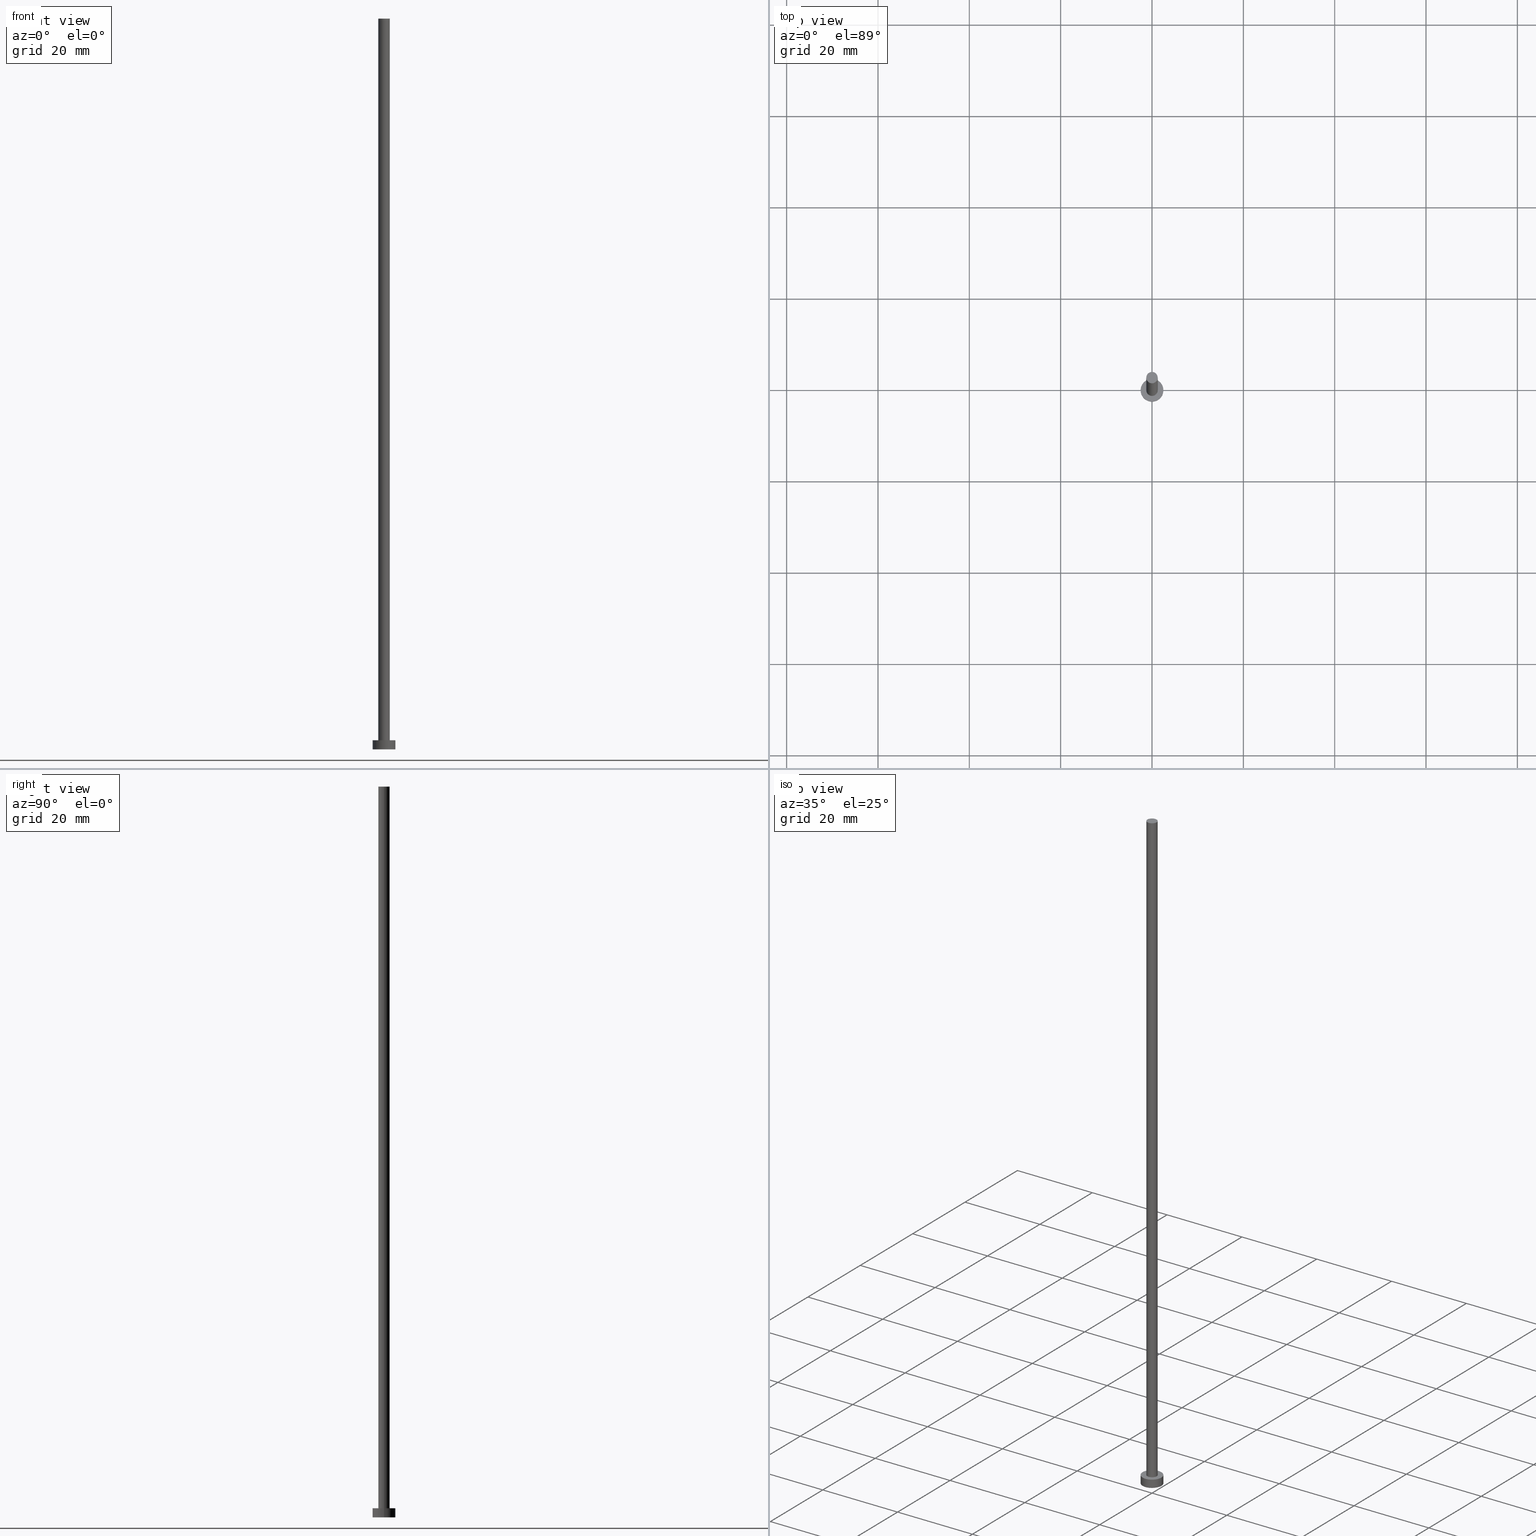
[diagram: canonical four-view strip — front | top / right | iso, engineering-drawing reading convention]
A machine part, canonical four-view strip (front | top / right | iso — engineering-drawing reading convention). The complete STEP part file that produces these views, byte-faithful:
ISO-10303-21;
HEADER;
FILE_DESCRIPTION (( 'STEP AP203' ),
    '1' );
FILE_NAME ('7a8d.STEP',
    '2023-02-13T14:28:10',
    ( '' ),
    ( '' ),
    'SwSTEP 2.0',
    'SolidWorks 2019',
    '' );
FILE_SCHEMA (( 'CONFIG_CONTROL_DESIGN' ));
ENDSEC;

DATA;
#1 = PRODUCT_RELATED_PRODUCT_CATEGORY ( 'detail', '', ( #250 ) ) ;
#2 = PERSON_AND_ORGANIZATION ( #3, #242 ) ;
#3 = PERSON ( 'NEUR�EN�', 'NEUR�EN�', 'NEUR�EN�', ('NEUR�EN�'), ('NEUR�EN�'), ('NEUR�EN�') ) ;
#4 = ORIENTED_EDGE ( 'NONE', *, *, #229, .T. ) ;
#5 = APPLICATION_CONTEXT ( 'configuration controlled 3d designs of mechanical parts and assemblies' ) ;
#6 = CYLINDRICAL_SURFACE ( 'NONE', #110, 1.250000000000000000 ) ;
#7 = DIRECTION ( 'NONE',  ( -1.000000000000000000, 0.000000000000000000, 0.000000000000000000 ) ) ;
#8 = LOCAL_TIME ( 15, 28, 10.00000000000000000, #194 ) ;
#9 = DIRECTION ( 'NONE',  ( 0.000000000000000000, 0.000000000000000000, 1.000000000000000000 ) ) ;
#10 = EDGE_LOOP ( 'NONE', ( #50, #92, #49, #131 ) ) ;
#11 = PERSON_AND_ORGANIZATION ( #3, #242 ) ;
#12 = AXIS2_PLACEMENT_3D ( 'NONE', #150, #46, #21 ) ;
#13 = CIRCLE ( 'NONE', #197, 2.500000000000000000 ) ;
#14 = CIRCLE ( 'NONE', #63, 1.250000000000000000 ) ;
#15 = ORIENTED_EDGE ( 'NONE', *, *, #235, .F. ) ;
#16 = DATE_TIME_ROLE ( 'classification_date' ) ;
#17 = CALENDAR_DATE ( 2023, 13, 2 ) ;
#18 = ADVANCED_FACE ( 'NONE', ( #137 ), #228, .T. ) ;
#19 = ORIENTED_EDGE ( 'NONE', *, *, #82, .F. ) ;
#20 = DATE_TIME_ROLE ( 'creation_date' ) ;
#21 = DIRECTION ( 'NONE',  ( 1.000000000000000000, 0.000000000000000000, 0.000000000000000000 ) ) ;
#22 = EDGE_CURVE ( 'NONE', #123, #227, #104, .T. ) ;
#23 =( GEOMETRIC_REPRESENTATION_CONTEXT ( 3 ) GLOBAL_UNCERTAINTY_ASSIGNED_CONTEXT ( ( #37 ) ) GLOBAL_UNIT_ASSIGNED_CONTEXT ( ( #240, #178, #207 ) ) REPRESENTATION_CONTEXT ( 'NONE', 'WORKASPACE' ) );
#24 = LOCAL_TIME ( 15, 28, 10.00000000000000000, #145 ) ;
#25 = CARTESIAN_POINT ( 'NONE',  ( 0.000000000000000000, 0.000000000000000000, 160.0000000000000000 ) ) ;
#26 = DIRECTION ( 'NONE',  ( 0.000000000000000000, 0.000000000000000000, 1.000000000000000000 ) ) ;
#27 = AXIS2_PLACEMENT_3D ( 'NONE', #106, #81, #64 ) ;
#28 = VECTOR ( 'NONE', #84, 1000.000000000000000 ) ;
#29 = AXIS2_PLACEMENT_3D ( 'NONE', #25, #187, #236 ) ;
#30 = CARTESIAN_POINT ( 'NONE',  ( 0.000000000000000000, 0.000000000000000000, 160.0000000000000000 ) ) ;
#31 = ADVANCED_FACE ( 'NONE', ( #166 ), #147, .F. ) ;
#32 = CARTESIAN_POINT ( 'NONE',  ( -2.500000000000000000, 0.000000000000000000, 2.000000000000000000 ) ) ;
#33 = DIRECTION ( 'NONE',  ( -0.000000000000000000, -0.000000000000000000, -1.000000000000000000 ) ) ;
#34 = SECURITY_CLASSIFICATION ( '', '', #43 ) ;
#35 = DIRECTION ( 'NONE',  ( -0.000000000000000000, -0.000000000000000000, -1.000000000000000000 ) ) ;
#36 = DIRECTION ( 'NONE',  ( -0.000000000000000000, -0.000000000000000000, -1.000000000000000000 ) ) ;
#37 = UNCERTAINTY_MEASURE_WITH_UNIT (LENGTH_MEASURE( 1.000000000000000082E-05 ), #240, 'distance_accuracy_value', 'NONE');
#38 = EDGE_CURVE ( 'NONE', #243, #95, #66, .T. ) ;
#39 = ORIENTED_EDGE ( 'NONE', *, *, #220, .T. ) ;
#40 = DATE_AND_TIME ( #149, #234 ) ;
#41 = FACE_OUTER_BOUND ( 'NONE', #221, .T. ) ;
#42 = MANIFOLD_SOLID_BREP ( 'P�idat vysunut�m3', #184 ) ;
#43 = SECURITY_CLASSIFICATION_LEVEL ( 'unclassified' ) ;
#44 = EDGE_LOOP ( 'NONE', ( #165, #19, #39, #211 ) ) ;
#45 = DATE_AND_TIME ( #85, #24 ) ;
#46 = DIRECTION ( 'NONE',  ( 0.000000000000000000, 0.000000000000000000, 1.000000000000000000 ) ) ;
#47 = CYLINDRICAL_SURFACE ( 'NONE', #56, 1.250000000000000000 ) ;
#48 = CIRCLE ( 'NONE', #86, 2.500000000000000000 ) ;
#49 = ORIENTED_EDGE ( 'NONE', *, *, #167, .T. ) ;
#50 = ORIENTED_EDGE ( 'NONE', *, *, #62, .F. ) ;
#51 = APPROVAL ( #233, 'NEUR�EN�' ) ;
#52 = ORIENTED_EDGE ( 'NONE', *, *, #22, .T. ) ;
#53 = DIRECTION ( 'NONE',  ( 0.000000000000000000, 0.000000000000000000, 1.000000000000000000 ) ) ;
#54 = APPROVAL_STATUS ( 'not_yet_approved' ) ;
#55 = ADVANCED_FACE ( 'NONE', ( #65, #41 ), #230, .T. ) ;
#56 = AXIS2_PLACEMENT_3D ( 'NONE', #129, #99, #206 ) ;
#57 = EDGE_LOOP ( 'NONE', ( #4, #163 ) ) ;
#58 = APPROVAL_ROLE ( '' ) ;
#59 = PRODUCT_DEFINITION_SHAPE ( 'NONE', 'NONE',  #189 ) ;
#60 = EDGE_LOOP ( 'NONE', ( #157, #76, #199, #144 ) ) ;
#61 = APPLICATION_CONTEXT ( 'configuration controlled 3d designs of mechanical parts and assemblies' ) ;
#62 = EDGE_CURVE ( 'NONE', #79, #95, #69, .T. ) ;
#63 = AXIS2_PLACEMENT_3D ( 'NONE', #68, #71, #213 ) ;
#64 = DIRECTION ( 'NONE',  ( 1.000000000000000000, 0.000000000000000000, -0.000000000000000000 ) ) ;
#65 = FACE_BOUND ( 'NONE', #126, .T. ) ;
#66 = CIRCLE ( 'NONE', #12, 1.250000000000000000 ) ;
#67 = APPROVAL_PERSON_ORGANIZATION ( #2, #88, #139 ) ;
#68 = CARTESIAN_POINT ( 'NONE',  ( 0.000000000000000000, 0.000000000000000000, 2.000000000000000000 ) ) ;
#69 = LINE ( 'NONE', #109, #232 ) ;
#70 = APPROVAL_DATE_TIME ( #238, #88 ) ;
#71 = DIRECTION ( 'NONE',  ( 0.000000000000000000, 0.000000000000000000, 1.000000000000000000 ) ) ;
#72 = DIRECTION ( 'NONE',  ( 1.000000000000000000, 0.000000000000000000, 0.000000000000000000 ) ) ;
#73 = ORIENTED_EDGE ( 'NONE', *, *, #141, .F. ) ;
#74 = PERSON_AND_ORGANIZATION_ROLE ( 'design_owner' ) ;
#75 = DIRECTION ( 'NONE',  ( -0.000000000000000000, -0.000000000000000000, -1.000000000000000000 ) ) ;
#76 = ORIENTED_EDGE ( 'NONE', *, *, #62, .T. ) ;
#77 = VECTOR ( 'NONE', #33, 1000.000000000000000 ) ;
#78 = CC_DESIGN_APPROVAL ( #51, ( #34 ) ) ;
#79 = VERTEX_POINT ( 'NONE', #172 ) ;
#80 = PERSON_AND_ORGANIZATION_ROLE ( 'creator' ) ;
#81 = DIRECTION ( 'NONE',  ( 0.000000000000000000, 0.000000000000000000, 1.000000000000000000 ) ) ;
#82 = EDGE_CURVE ( 'NONE', #237, #123, #48, .T. ) ;
#83 = DESIGN_CONTEXT ( 'detailed design', #61, 'design' ) ;
#84 = DIRECTION ( 'NONE',  ( -0.000000000000000000, -0.000000000000000000, -1.000000000000000000 ) ) ;
#85 = CALENDAR_DATE ( 2023, 13, 2 ) ;
#86 = AXIS2_PLACEMENT_3D ( 'NONE', #155, #112, #168 ) ;
#87 = CC_DESIGN_APPROVAL ( #152, ( #188 ) ) ;
#88 = APPROVAL ( #54, 'NEUR�EN�' ) ;
#89 = DIRECTION ( 'NONE',  ( 0.000000000000000000, 0.000000000000000000, 1.000000000000000000 ) ) ;
#90 = CARTESIAN_POINT ( 'NONE',  ( 2.500000000000000000, 3.061616997868383141E-16, 2.000000000000000000 ) ) ;
#91 = FACE_OUTER_BOUND ( 'NONE', #44, .T. ) ;
#92 = ORIENTED_EDGE ( 'NONE', *, *, #229, .F. ) ;
#93 = COORDINATED_UNIVERSAL_TIME_OFFSET ( 1, 0, .AHEAD. ) ;
#94 = DIRECTION ( 'NONE',  ( 1.000000000000000000, 0.000000000000000000, -0.000000000000000000 ) ) ;
#95 = VERTEX_POINT ( 'NONE', #171 ) ;
#96 = CARTESIAN_POINT ( 'NONE',  ( -1.250000000000000000, 0.000000000000000000, 2.000000000000000000 ) ) ;
#97 = AXIS2_PLACEMENT_3D ( 'NONE', #130, #89, #94 ) ;
#98 = CC_DESIGN_SECURITY_CLASSIFICATION ( #34, ( #188 ) ) ;
#99 = DIRECTION ( 'NONE',  ( -0.000000000000000000, -0.000000000000000000, -1.000000000000000000 ) ) ;
#100 = DATE_AND_TIME ( #142, #8 ) ;
#101 = PERSON_AND_ORGANIZATION_ROLE ( 'creator' ) ;
#102 = EDGE_CURVE ( 'NONE', #123, #237, #218, .T. ) ;
#103 = PERSON_AND_ORGANIZATION ( #3, #242 ) ;
#104 = LINE ( 'NONE', #181, #28 ) ;
#105 = PERSON_AND_ORGANIZATION ( #3, #242 ) ;
#106 = CARTESIAN_POINT ( 'NONE',  ( 0.000000000000000000, 0.000000000000000000, 0.000000000000000000 ) ) ;
#107 = DATE_AND_TIME ( #17, #249 ) ;
#108 = AXIS2_PLACEMENT_3D ( 'NONE', #136, #75, #180 ) ;
#109 = CARTESIAN_POINT ( 'NONE',  ( 1.250000000000000000, 1.530808498934191571E-16, 160.0000000000000000 ) ) ;
#110 = AXIS2_PLACEMENT_3D ( 'NONE', #190, #35, #7 ) ;
#111 = APPROVAL_PERSON_ORGANIZATION ( #105, #152, #58 ) ;
#112 = DIRECTION ( 'NONE',  ( 0.000000000000000000, 0.000000000000000000, 1.000000000000000000 ) ) ;
#113 = CC_DESIGN_PERSON_AND_ORGANIZATION_ASSIGNMENT ( #11, #101, ( #188 ) ) ;
#114 = CIRCLE ( 'NONE', #248, 1.250000000000000000 ) ;
#115 = CARTESIAN_POINT ( 'NONE',  ( 0.000000000000000000, 0.000000000000000000, 0.000000000000000000 ) ) ;
#116 = AXIS2_PLACEMENT_3D ( 'NONE', #179, #9, #119 ) ;
#117 = CARTESIAN_POINT ( 'NONE',  ( 2.500000000000000000, 3.061616997868383141E-16, 0.000000000000000000 ) ) ;
#118 = DIRECTION ( 'NONE',  ( 0.000000000000000000, 0.000000000000000000, 1.000000000000000000 ) ) ;
#119 = DIRECTION ( 'NONE',  ( 1.000000000000000000, 0.000000000000000000, 0.000000000000000000 ) ) ;
#120 = AXIS2_PLACEMENT_3D ( 'NONE', #127, #175, #239 ) ;
#121 = APPROVAL_PERSON_ORGANIZATION ( #103, #51, #182 ) ;
#122 = VERTEX_POINT ( 'NONE', #254 ) ;
#123 = VERTEX_POINT ( 'NONE', #90 ) ;
#124 = PERSON_AND_ORGANIZATION ( #3, #242 ) ;
#125 = ADVANCED_BREP_SHAPE_REPRESENTATION ( '7a8d', ( #42, #116 ), #23 ) ;
#126 = EDGE_LOOP ( 'NONE', ( #245, #73 ) ) ;
#127 = CARTESIAN_POINT ( 'NONE',  ( 0.000000000000000000, 0.000000000000000000, 2.000000000000000000 ) ) ;
#128 = CC_DESIGN_PERSON_AND_ORGANIZATION_ASSIGNMENT ( #124, #200, ( #34 ) ) ;
#129 = CARTESIAN_POINT ( 'NONE',  ( 0.000000000000000000, 0.000000000000000000, 160.0000000000000000 ) ) ;
#130 = CARTESIAN_POINT ( 'NONE',  ( 0.000000000000000000, 0.000000000000000000, 2.000000000000000000 ) ) ;
#131 = ORIENTED_EDGE ( 'NONE', *, *, #38, .T. ) ;
#132 = LINE ( 'NONE', #205, #77 ) ;
#133 = LINE ( 'NONE', #226, #170 ) ;
#134 = ORIENTED_EDGE ( 'NONE', *, *, #102, .T. ) ;
#135 = EDGE_CURVE ( 'NONE', #79, #210, #185, .T. ) ;
#136 = CARTESIAN_POINT ( 'NONE',  ( 0.000000000000000000, 0.000000000000000000, 2.000000000000000000 ) ) ;
#137 = FACE_OUTER_BOUND ( 'NONE', #57, .T. ) ;
#138 = DIRECTION ( 'NONE',  ( 1.000000000000000000, 0.000000000000000000, 0.000000000000000000 ) ) ;
#139 = APPROVAL_ROLE ( '' ) ;
#140 = AXIS2_PLACEMENT_3D ( 'NONE', #215, #255, #154 ) ;
#141 = EDGE_CURVE ( 'NONE', #95, #243, #14, .T. ) ;
#142 = CALENDAR_DATE ( 2023, 13, 2 ) ;
#143 = CARTESIAN_POINT ( 'NONE',  ( 0.000000000000000000, 0.000000000000000000, 160.0000000000000000 ) ) ;
#144 = ORIENTED_EDGE ( 'NONE', *, *, #167, .F. ) ;
#145 = COORDINATED_UNIVERSAL_TIME_OFFSET ( 1, 0, .AHEAD. ) ;
#146 = EDGE_LOOP ( 'NONE', ( #216, #15 ) ) ;
#147 = PLANE ( 'NONE',  #27 ) ;
#148 = ADVANCED_FACE ( 'NONE', ( #153 ), #186, .T. ) ;
#149 = CALENDAR_DATE ( 2023, 13, 2 ) ;
#150 = CARTESIAN_POINT ( 'NONE',  ( 0.000000000000000000, 0.000000000000000000, 2.000000000000000000 ) ) ;
#151 = AXIS2_PLACEMENT_3D ( 'NONE', #143, #118, #191 ) ;
#152 = APPROVAL ( #212, 'NEUR�EN�' ) ;
#153 = FACE_OUTER_BOUND ( 'NONE', #164, .T. ) ;
#154 = DIRECTION ( 'NONE',  ( -1.000000000000000000, 0.000000000000000000, 0.000000000000000000 ) ) ;
#155 = CARTESIAN_POINT ( 'NONE',  ( 0.000000000000000000, 0.000000000000000000, 2.000000000000000000 ) ) ;
#156 = ADVANCED_FACE ( 'NONE', ( #91 ), #217, .T. ) ;
#157 = ORIENTED_EDGE ( 'NONE', *, *, #135, .F. ) ;
#158 = DIRECTION ( 'NONE',  ( 0.000000000000000000, 0.000000000000000000, 1.000000000000000000 ) ) ;
#159 = AXIS2_PLACEMENT_3D ( 'NONE', #115, #158, #72 ) ;
#160 = LOCAL_TIME ( 15, 28, 10.00000000000000000, #93 ) ;
#161 = APPLICATION_PROTOCOL_DEFINITION ( 'international standard', 'config_control_design', 1994, #5 ) ;
#162 = APPLICATION_PROTOCOL_DEFINITION ( 'international standard', 'config_control_design', 1994, #61 ) ;
#163 = ORIENTED_EDGE ( 'NONE', *, *, #135, .T. ) ;
#164 = EDGE_LOOP ( 'NONE', ( #241, #52, #201, #173 ) ) ;
#165 = ORIENTED_EDGE ( 'NONE', *, *, #22, .F. ) ;
#166 = FACE_OUTER_BOUND ( 'NONE', #146, .T. ) ;
#167 = EDGE_CURVE ( 'NONE', #210, #243, #133, .T. ) ;
#168 = DIRECTION ( 'NONE',  ( 1.000000000000000000, 0.000000000000000000, 0.000000000000000000 ) ) ;
#169 = CIRCLE ( 'NONE', #159, 2.500000000000000000 ) ;
#170 = VECTOR ( 'NONE', #36, 1000.000000000000000 ) ;
#171 = CARTESIAN_POINT ( 'NONE',  ( 1.250000000000000000, 1.530808498934191571E-16, 2.000000000000000000 ) ) ;
#172 = CARTESIAN_POINT ( 'NONE',  ( 1.250000000000000000, 1.530808498934191571E-16, 160.0000000000000000 ) ) ;
#173 = ORIENTED_EDGE ( 'NONE', *, *, #220, .F. ) ;
#174 = CALENDAR_DATE ( 2023, 13, 2 ) ;
#175 = DIRECTION ( 'NONE',  ( 0.000000000000000000, 0.000000000000000000, 1.000000000000000000 ) ) ;
#176 = FACE_OUTER_BOUND ( 'NONE', #10, .T. ) ;
#177 = CC_DESIGN_PERSON_AND_ORGANIZATION_ASSIGNMENT ( #196, #202, ( #188 ) ) ;
#178 =( NAMED_UNIT ( * ) PLANE_ANGLE_UNIT ( ) SI_UNIT ( $, .RADIAN. ) );
#179 = CARTESIAN_POINT ( 'NONE',  ( 0.000000000000000000, 0.000000000000000000, 0.000000000000000000 ) ) ;
#180 = DIRECTION ( 'NONE',  ( -1.000000000000000000, 0.000000000000000000, 0.000000000000000000 ) ) ;
#181 = CARTESIAN_POINT ( 'NONE',  ( 2.500000000000000000, 3.061616997868383141E-16, 2.000000000000000000 ) ) ;
#182 = APPROVAL_ROLE ( '' ) ;
#183 = APPROVAL_DATE_TIME ( #107, #51 ) ;
#184 = CLOSED_SHELL ( 'NONE', ( #198, #148, #156, #55, #31, #253, #18 ) ) ;
#185 = CIRCLE ( 'NONE', #29, 1.250000000000000000 ) ;
#186 = CYLINDRICAL_SURFACE ( 'NONE', #140, 2.500000000000000000 ) ;
#187 = DIRECTION ( 'NONE',  ( 0.000000000000000000, 0.000000000000000000, 1.000000000000000000 ) ) ;
#188 = PRODUCT_DEFINITION_FORMATION_WITH_SPECIFIED_SOURCE ( 'LIBOVOLN�', '', #250, .NOT_KNOWN. ) ;
#189 = PRODUCT_DEFINITION ( 'NEZN�M�', '', #188, #83 ) ;
#190 = CARTESIAN_POINT ( 'NONE',  ( 0.000000000000000000, 0.000000000000000000, 160.0000000000000000 ) ) ;
#191 = DIRECTION ( 'NONE',  ( 1.000000000000000000, 0.000000000000000000, -0.000000000000000000 ) ) ;
#192 = MECHANICAL_CONTEXT ( 'NONE', #5, 'mechanical' ) ;
#193 = CC_DESIGN_PERSON_AND_ORGANIZATION_ASSIGNMENT ( #222, #80, ( #189 ) ) ;
#194 = COORDINATED_UNIVERSAL_TIME_OFFSET ( 1, 0, .AHEAD. ) ;
#195 = APPROVAL_DATE_TIME ( #100, #152 ) ;
#196 = PERSON_AND_ORGANIZATION ( #3, #242 ) ;
#197 = AXIS2_PLACEMENT_3D ( 'NONE', #204, #26, #138 ) ;
#198 = ADVANCED_FACE ( 'NONE', ( #214 ), #47, .T. ) ;
#199 = ORIENTED_EDGE ( 'NONE', *, *, #141, .T. ) ;
#200 = PERSON_AND_ORGANIZATION_ROLE ( 'classification_officer' ) ;
#201 = ORIENTED_EDGE ( 'NONE', *, *, #235, .T. ) ;
#202 = PERSON_AND_ORGANIZATION_ROLE ( 'design_supplier' ) ;
#203 = DIRECTION ( 'NONE',  ( -0.000000000000000000, -0.000000000000000000, -1.000000000000000000 ) ) ;
#204 = CARTESIAN_POINT ( 'NONE',  ( 0.000000000000000000, 0.000000000000000000, 0.000000000000000000 ) ) ;
#205 = CARTESIAN_POINT ( 'NONE',  ( -2.500000000000000000, 0.000000000000000000, 2.000000000000000000 ) ) ;
#206 = DIRECTION ( 'NONE',  ( -1.000000000000000000, 0.000000000000000000, 0.000000000000000000 ) ) ;
#207 =( NAMED_UNIT ( * ) SI_UNIT ( $, .STERADIAN. ) SOLID_ANGLE_UNIT ( ) );
#208 = ORIENTED_EDGE ( 'NONE', *, *, #82, .T. ) ;
#209 = CC_DESIGN_DATE_AND_TIME_ASSIGNMENT ( #40, #20, ( #189 ) ) ;
#210 = VERTEX_POINT ( 'NONE', #223 ) ;
#211 = ORIENTED_EDGE ( 'NONE', *, *, #247, .T. ) ;
#212 = APPROVAL_STATUS ( 'not_yet_approved' ) ;
#213 = DIRECTION ( 'NONE',  ( 1.000000000000000000, 0.000000000000000000, 0.000000000000000000 ) ) ;
#214 = FACE_OUTER_BOUND ( 'NONE', #60, .T. ) ;
#215 = CARTESIAN_POINT ( 'NONE',  ( 0.000000000000000000, 0.000000000000000000, 2.000000000000000000 ) ) ;
#216 = ORIENTED_EDGE ( 'NONE', *, *, #247, .F. ) ;
#217 = CYLINDRICAL_SURFACE ( 'NONE', #108, 2.500000000000000000 ) ;
#218 = CIRCLE ( 'NONE', #120, 2.500000000000000000 ) ;
#219 = CC_DESIGN_APPROVAL ( #88, ( #189 ) ) ;
#220 = EDGE_CURVE ( 'NONE', #237, #122, #132, .T. ) ;
#221 = EDGE_LOOP ( 'NONE', ( #208, #134 ) ) ;
#222 = PERSON_AND_ORGANIZATION ( #3, #242 ) ;
#223 = CARTESIAN_POINT ( 'NONE',  ( -1.250000000000000000, 0.000000000000000000, 160.0000000000000000 ) ) ;
#224 = DIRECTION ( 'NONE',  ( 1.000000000000000000, 0.000000000000000000, 0.000000000000000000 ) ) ;
#225 = CC_DESIGN_PERSON_AND_ORGANIZATION_ASSIGNMENT ( #244, #74, ( #250 ) ) ;
#226 = CARTESIAN_POINT ( 'NONE',  ( -1.250000000000000000, 0.000000000000000000, 160.0000000000000000 ) ) ;
#227 = VERTEX_POINT ( 'NONE', #117 ) ;
#228 = PLANE ( 'NONE',  #151 ) ;
#229 = EDGE_CURVE ( 'NONE', #210, #79, #114, .T. ) ;
#230 = PLANE ( 'NONE',  #97 ) ;
#231 = COORDINATED_UNIVERSAL_TIME_OFFSET ( 1, 0, .AHEAD. ) ;
#232 = VECTOR ( 'NONE', #203, 1000.000000000000000 ) ;
#233 = APPROVAL_STATUS ( 'not_yet_approved' ) ;
#234 = LOCAL_TIME ( 15, 28, 10.00000000000000000, #246 ) ;
#235 = EDGE_CURVE ( 'NONE', #227, #122, #13, .T. ) ;
#236 = DIRECTION ( 'NONE',  ( 1.000000000000000000, 0.000000000000000000, 0.000000000000000000 ) ) ;
#237 = VERTEX_POINT ( 'NONE', #32 ) ;
#238 = DATE_AND_TIME ( #174, #160 ) ;
#239 = DIRECTION ( 'NONE',  ( 1.000000000000000000, 0.000000000000000000, 0.000000000000000000 ) ) ;
#240 =( LENGTH_UNIT ( ) NAMED_UNIT ( * ) SI_UNIT ( .MILLI., .METRE. ) );
#241 = ORIENTED_EDGE ( 'NONE', *, *, #102, .F. ) ;
#242 = ORGANIZATION ( 'NEUR�EN�', 'NEUR�EN�', '' ) ;
#243 = VERTEX_POINT ( 'NONE', #96 ) ;
#244 = PERSON_AND_ORGANIZATION ( #3, #242 ) ;
#245 = ORIENTED_EDGE ( 'NONE', *, *, #38, .F. ) ;
#246 = COORDINATED_UNIVERSAL_TIME_OFFSET ( 1, 0, .AHEAD. ) ;
#247 = EDGE_CURVE ( 'NONE', #122, #227, #169, .T. ) ;
#248 = AXIS2_PLACEMENT_3D ( 'NONE', #30, #53, #224 ) ;
#249 = LOCAL_TIME ( 15, 28, 10.00000000000000000, #231 ) ;
#250 = PRODUCT ( '7a8d', '7a8d', '', ( #192 ) ) ;
#251 = SHAPE_DEFINITION_REPRESENTATION ( #59, #125 ) ;
#252 = CC_DESIGN_DATE_AND_TIME_ASSIGNMENT ( #45, #16, ( #34 ) ) ;
#253 = ADVANCED_FACE ( 'NONE', ( #176 ), #6, .T. ) ;
#254 = CARTESIAN_POINT ( 'NONE',  ( -2.500000000000000000, 0.000000000000000000, 0.000000000000000000 ) ) ;
#255 = DIRECTION ( 'NONE',  ( -0.000000000000000000, -0.000000000000000000, -1.000000000000000000 ) ) ;
ENDSEC;
END-ISO-10303-21;
